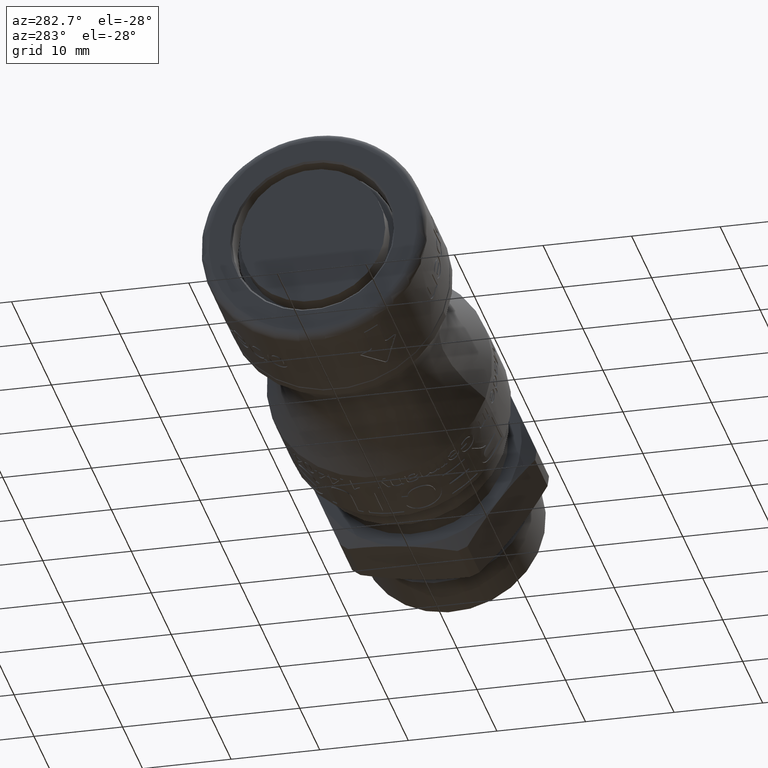
[diagram: clean part render]
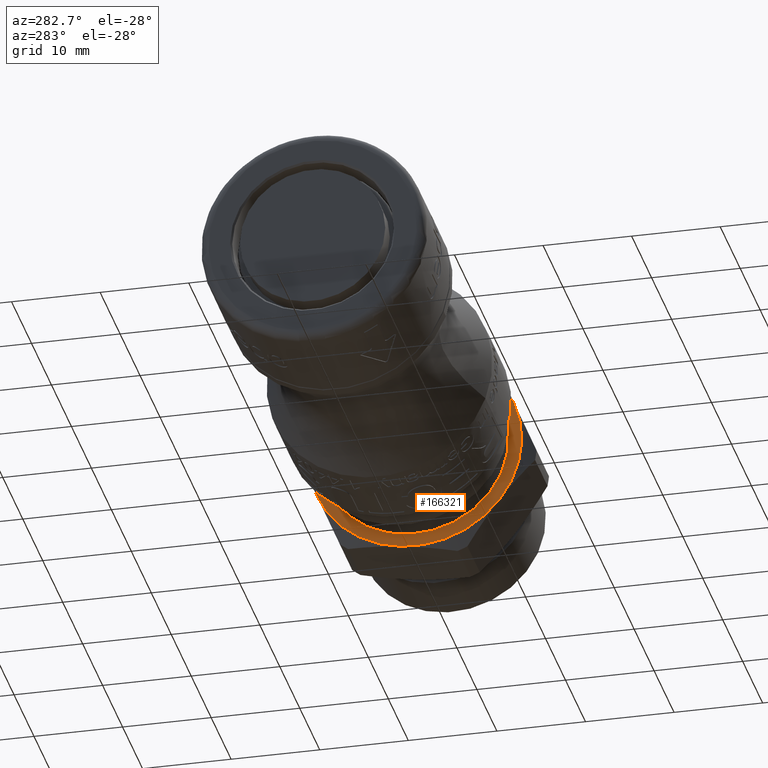
[diagram: same view with one face highlighted and labeled with its STEP entity id]
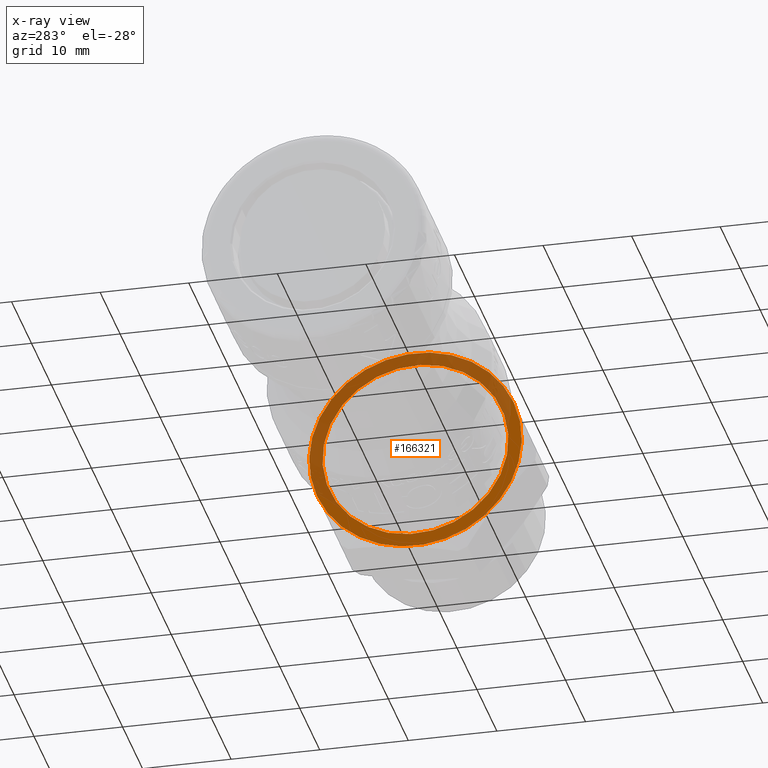
[diagram: x-ray of the same camera — body ghosted, the highlighted face saturated]
A machine part, auxiliary view. The second image highlights one B-rep face of the part: STEP entity #166321.
The next image is the same camera in x-ray: the body ghosted, the highlighted face saturated — about 53% of this face is hidden behind the body in this view.
In plain terms, the highlighted planar face has unit normal (-1, 0, 0).
Its self-contained STEP definition (entity closure, byte-faithful):
#166245=CARTESIAN_POINT('',(49.20000000000001,8.3020054755017,6.428584998640038));
#166246=VERTEX_POINT('',#166245);
#166247=CARTESIAN_POINT('',(49.20000000000001,-5.729265E-016,-2.218671E-030));
#166248=DIRECTION('',(-1.0,-1.790838E-017,-1.386720E-017));
#166249=DIRECTION('',(-2.264971E-017,0.790667188143019,0.61224619034667));
#166250=AXIS2_PLACEMENT_3D('',#166247,#166248,#166249);
#166251=CIRCLE('',#166250,10.499999999999998);
#166252=EDGE_CURVE('',#166246,#166246,#166251,.T.);
#166257=CARTESIAN_POINT('',(49.20000000000001,8.895005866608965,6.887769641400042));
#166258=DIRECTION('',(-1.0,0.0,0.0));
#166259=DIRECTION('',(0.0,-0.61224619034667,0.790667188143019));
#166260=AXIS2_PLACEMENT_3D('',#166257,#166258,#166259);
#166261=PLANE('',#166260);
#166262=CARTESIAN_POINT('',(49.20000000000001,9.488006257716231,7.346954284160045));
#166263=VERTEX_POINT('',#166262);
#166264=CARTESIAN_POINT('',(49.20000000000001,11.106652179383632,-4.543377308367958));
#166265=VERTEX_POINT('',#166264);
#166266=CARTESIAN_POINT('',(49.20000000000001,-5.729265E-016,-2.218671E-030));
#166267=DIRECTION('',(-1.0,-1.790838E-017,-1.386720E-017));
#166268=DIRECTION('',(-2.264971E-017,0.790667188143019,0.61224619034667));
#166269=AXIS2_PLACEMENT_3D('',#166266,#166267,#166268);
#166270=CIRCLE('',#166269,12.000000000000002);
#166271=EDGE_CURVE('',#166263,#166265,#166270,.T.);
#166272=ORIENTED_EDGE('',*,*,#166271,.T.);
#166273=CARTESIAN_POINT('',(49.20000000000001,1.618645921667401,-11.890331592528005));
#166274=VERTEX_POINT('',#166273);
#166275=CARTESIAN_POINT('',(49.20000000000001,-5.729265E-016,-2.218671E-030));
#166276=DIRECTION('',(-1.0,-1.790838E-017,-1.386720E-017));
#166277=DIRECTION('',(-2.264971E-017,0.790667188143019,0.61224619034667));
#166278=AXIS2_PLACEMENT_3D('',#166275,#166276,#166277);
#166279=CIRCLE('',#166278,12.000000000000002);
#166280=EDGE_CURVE('',#166265,#166274,#166279,.T.);
#166281=ORIENTED_EDGE('',*,*,#166280,.T.);
#166282=CARTESIAN_POINT('',(49.20000000000001,-9.488006257716233,-7.346954284160047));
#166283=VERTEX_POINT('',#166282);
#166284=CARTESIAN_POINT('',(49.20000000000001,-5.729265E-016,-2.218671E-030));
#166285=DIRECTION('',(-1.0,-1.790838E-017,-1.386720E-017));
#166286=DIRECTION('',(-2.264971E-017,0.790667188143019,0.61224619034667));
#166287=AXIS2_PLACEMENT_3D('',#166284,#166285,#166286);
#166288=CIRCLE('',#166287,12.000000000000002);
#166289=EDGE_CURVE('',#166274,#166283,#166288,.T.);
#166290=ORIENTED_EDGE('',*,*,#166289,.T.);
#166291=CARTESIAN_POINT('',(49.20000000000001,-11.106652179383634,4.543377308367953));
#166292=VERTEX_POINT('',#166291);
#166293=CARTESIAN_POINT('',(49.20000000000001,-5.729265E-016,-2.218671E-030));
#166294=DIRECTION('',(-1.0,-1.790838E-017,-1.386720E-017));
#166295=DIRECTION('',(-2.264971E-017,0.790667188143019,0.61224619034667));
#166296=AXIS2_PLACEMENT_3D('',#166293,#166294,#166295);
#166297=CIRCLE('',#166296,12.000000000000002);
#166298=EDGE_CURVE('',#166283,#166292,#166297,.T.);
#166299=ORIENTED_EDGE('',*,*,#166298,.T.);
#166300=CARTESIAN_POINT('',(49.20000000000001,-1.618645921667411,11.890331592528005));
#166301=VERTEX_POINT('',#166300);
#166302=CARTESIAN_POINT('',(49.20000000000001,-5.729265E-016,-2.218671E-030));
#166303=DIRECTION('',(-1.0,-1.790838E-017,-1.386720E-017));
#166304=DIRECTION('',(-2.264971E-017,0.790667188143019,0.61224619034667));
#166305=AXIS2_PLACEMENT_3D('',#166302,#166303,#166304);
#166306=CIRCLE('',#166305,12.000000000000002);
#166307=EDGE_CURVE('',#166292,#166301,#166306,.T.);
#166308=ORIENTED_EDGE('',*,*,#166307,.T.);
#166309=CARTESIAN_POINT('',(49.20000000000001,-5.729265E-016,-2.218671E-030));
#166310=DIRECTION('',(-1.0,-1.790838E-017,-1.386720E-017));
#166311=DIRECTION('',(-2.264971E-017,0.790667188143019,0.61224619034667));
#166312=AXIS2_PLACEMENT_3D('',#166309,#166310,#166311);
#166313=CIRCLE('',#166312,12.000000000000002);
#166314=EDGE_CURVE('',#166301,#166263,#166313,.T.);
#166315=ORIENTED_EDGE('',*,*,#166314,.T.);
#166316=EDGE_LOOP('',(#166272,#166281,#166290,#166299,#166308,#166315));
#166317=FACE_OUTER_BOUND('',#166316,.T.);
#166318=ORIENTED_EDGE('',*,*,#166252,.F.);
#166319=EDGE_LOOP('',(#166318));
#166320=FACE_BOUND('',#166319,.T.);
#166321=ADVANCED_FACE('',(#166317,#166320),#166261,.T.);